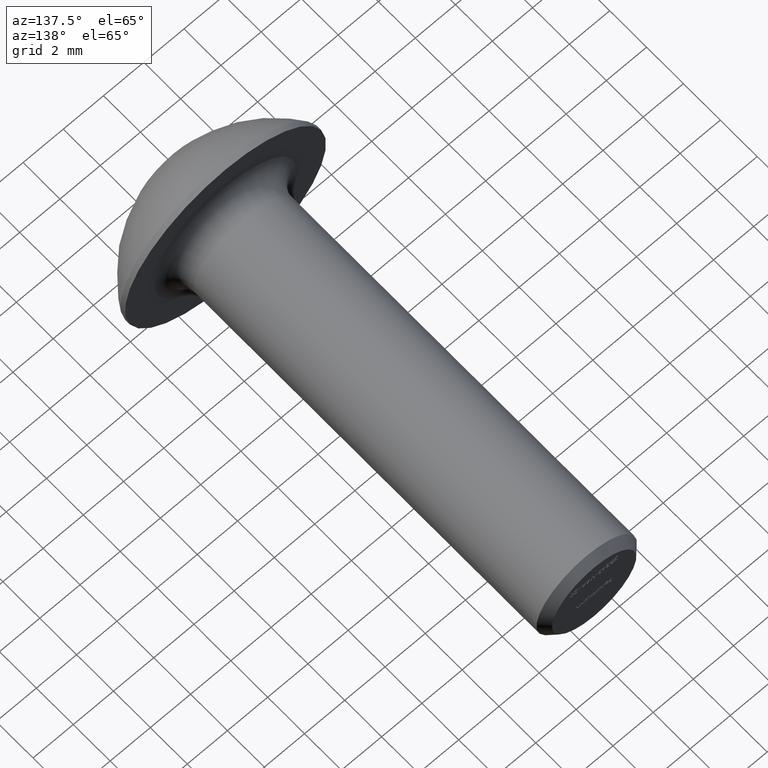
[diagram: clean part render]
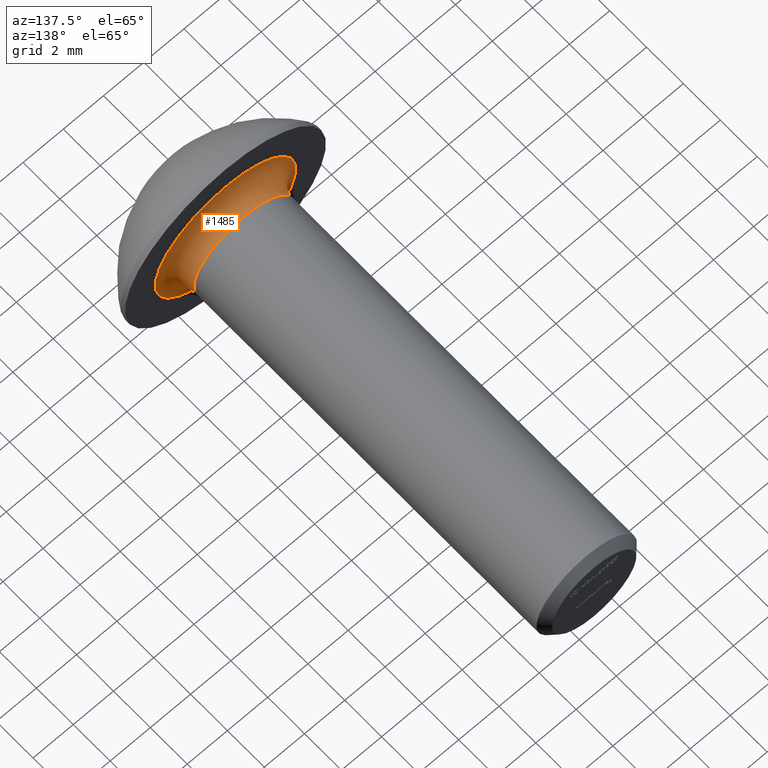
[diagram: same view with one face highlighted and labeled with its STEP entity id]
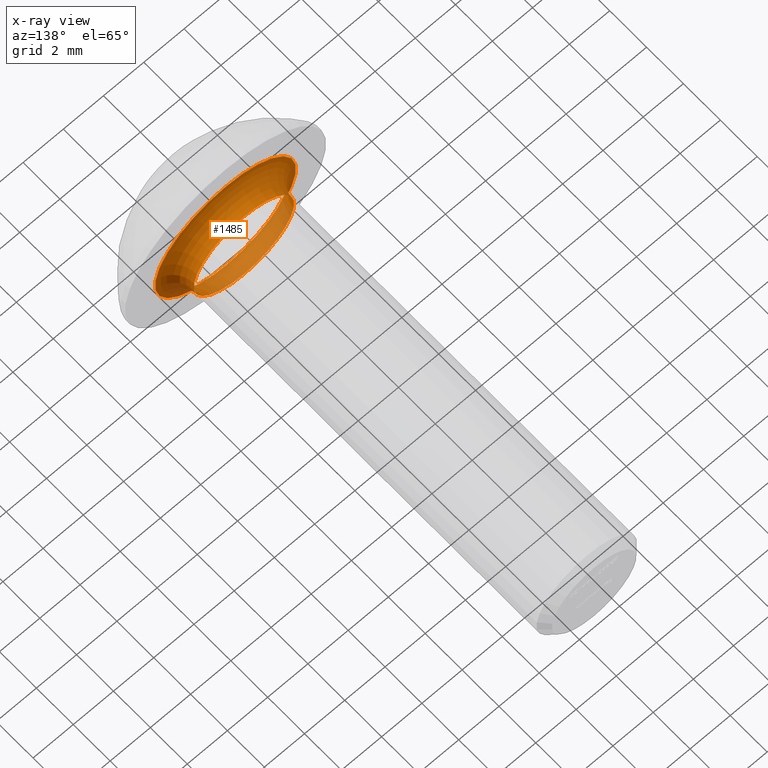
[diagram: x-ray of the same camera — body ghosted, the highlighted face saturated]
A machine part, auxiliary view. The second image highlights one B-rep face of the part: STEP entity #1485.
The next image is the same camera in x-ray: the body ghosted, the highlighted face saturated — about 24% of this face is hidden behind the body in this view.
In plain terms, the highlighted toroidal blend (fillet) surface has major radius 3.5 mm and minor (blend) radius 1 mm.
Its self-contained STEP definition (entity closure, byte-faithful):
#525 = CIRCLE ( 'NONE', #14415, 3.499999999999996900 ) ;
#612 = ORIENTED_EDGE ( 'NONE', *, *, #8909, .F. ) ;
#776 = FACE_OUTER_BOUND ( 'NONE', #3256, .T. ) ;
#932 = CARTESIAN_POINT ( 'NONE',  ( 0.0000000000000000000, 3.800000000000000300, 0.0000000000000000000 ) ) ;
#1485 = ADVANCED_FACE ( 'NONE', ( #776, #9498 ), #2191, .F. ) ;
#1918 = CARTESIAN_POINT ( 'NONE',  ( 0.0000000000000000000, 2.800000000000000300, -3.499999999999996900 ) ) ;
#2116 = CARTESIAN_POINT ( 'NONE',  ( 0.0000000000000000000, 3.800000000000000300, 0.0000000000000000000 ) ) ;
#2191 = TOROIDAL_SURFACE ( 'NONE', #10019, 3.499999999999996900, 1.000000000000000000 ) ;
#3256 = EDGE_LOOP ( 'NONE', ( #14865 ) ) ;
#3260 = DIRECTION ( 'NONE',  ( 0.0000000000000000000, 1.000000000000000000, 0.0000000000000000000 ) ) ;
#5378 = DIRECTION ( 'NONE',  ( -0.0000000000000000000, -1.000000000000000000, -0.0000000000000000000 ) ) ;
#6472 = DIRECTION ( 'NONE',  ( 0.0000000000000000000, 0.0000000000000000000, -1.000000000000000000 ) ) ;
#7151 = VERTEX_POINT ( 'NONE', #11115 ) ;
#7870 = VERTEX_POINT ( 'NONE', #1918 ) ;
#7878 = EDGE_CURVE ( 'NONE', #7151, #7151, #13732, .T. ) ;
#8116 = EDGE_LOOP ( 'NONE', ( #612 ) ) ;
#8909 = EDGE_CURVE ( 'NONE', #7870, #7870, #525, .T. ) ;
#9498 = FACE_OUTER_BOUND ( 'NONE', #8116, .T. ) ;
#9985 = CARTESIAN_POINT ( 'NONE',  ( 0.0000000000000000000, 2.800000000000000300, 0.0000000000000000000 ) ) ;
#10019 = AXIS2_PLACEMENT_3D ( 'NONE', #932, #14645, #11361 ) ;
#10631 = AXIS2_PLACEMENT_3D ( 'NONE', #2116, #3260, #11474 ) ;
#11115 = CARTESIAN_POINT ( 'NONE',  ( 0.0000000000000000000, 3.800000000000000300, -2.499999999999996900 ) ) ;
#11361 = DIRECTION ( 'NONE',  ( 0.0000000000000000000, 0.0000000000000000000, -1.000000000000000000 ) ) ;
#11474 = DIRECTION ( 'NONE',  ( 0.0000000000000000000, 0.0000000000000000000, -1.000000000000000000 ) ) ;
#13732 = CIRCLE ( 'NONE', #10631, 2.499999999999996900 ) ;
#14415 = AXIS2_PLACEMENT_3D ( 'NONE', #9985, #5378, #6472 ) ;
#14645 = DIRECTION ( 'NONE',  ( -0.0000000000000000000, -1.000000000000000000, -0.0000000000000000000 ) ) ;
#14865 = ORIENTED_EDGE ( 'NONE', *, *, #7878, .F. ) ;